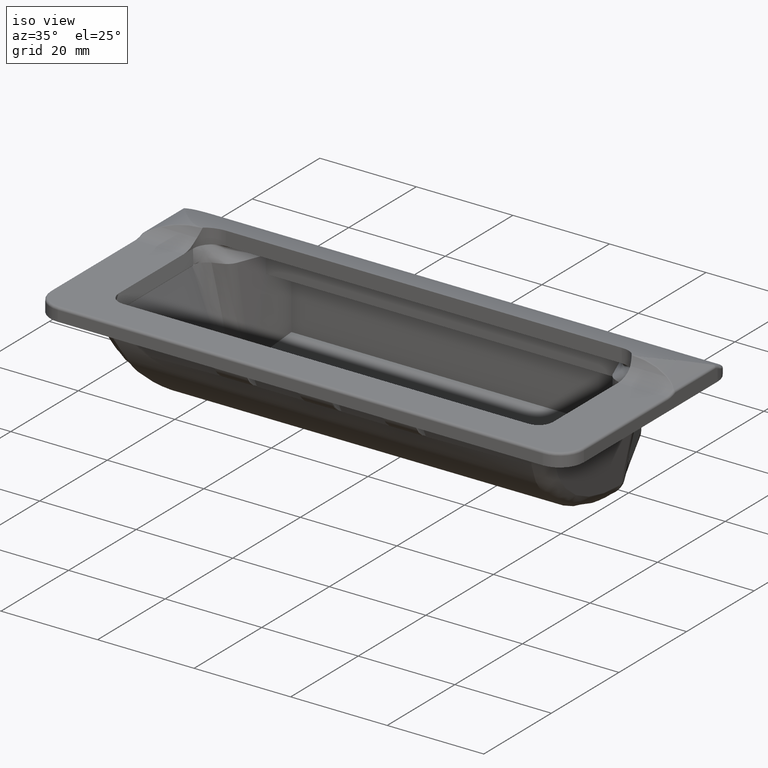
[diagram: clean part render]
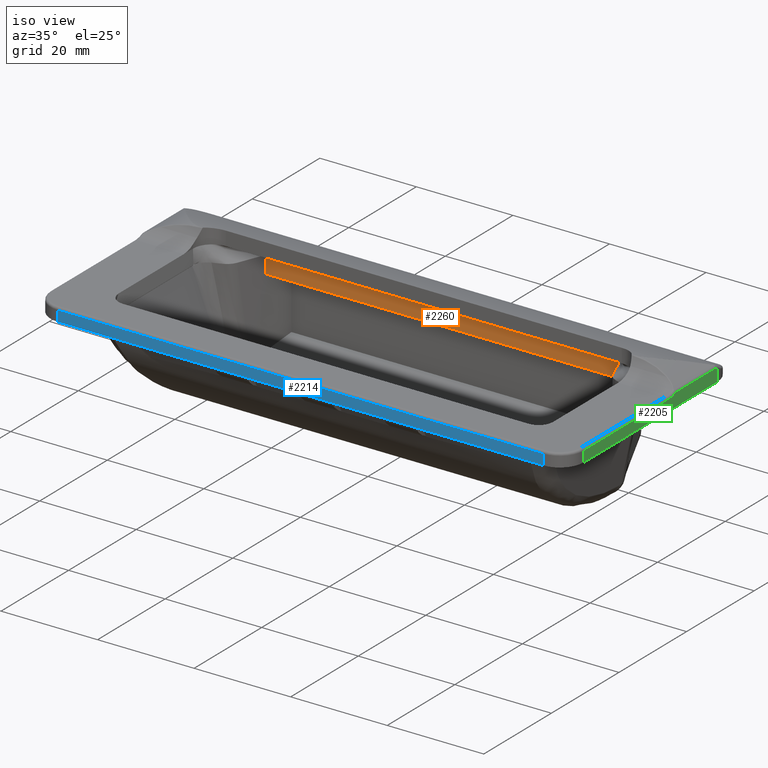
[diagram: same view with three faces highlighted in distinct colors, each labeled with its STEP entity id]
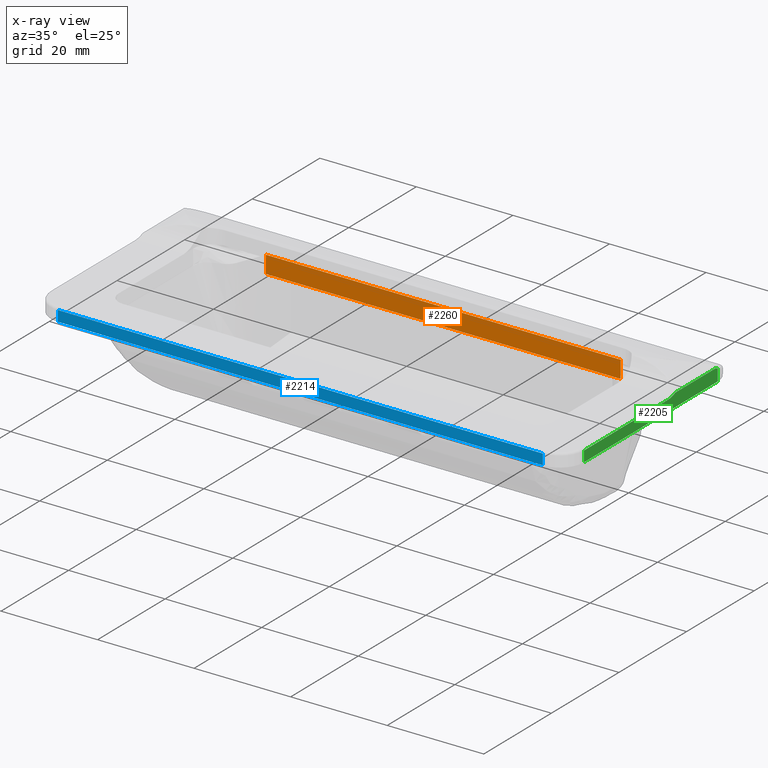
[diagram: x-ray of the same camera — body ghosted, the three highlighted faces saturated]
A machine part, iso view with three faces highlighted in distinct colors.
The next image is the same camera in x-ray (body ghosted, the three faces saturated) — at least one of them is partly hidden behind the body in this view.
Their STEP definitions:

[orange] entity #2260 — the highlighted planar face has unit normal (0, 1, 0).
#76=PLANE('',#2465);
#165=LINE('',#4479,#263);
#176=LINE('',#5185,#274);
#263=VECTOR('',#2869,73.537453362985);
#274=VECTOR('',#2948,73.4697963429796);
#441=FACE_OUTER_BOUND('',#588,.T.);
#588=EDGE_LOOP('',(#2000,#2001,#2002,#2003));
#820=B_SPLINE_CURVE_WITH_KNOTS('',3,(#5176,#5177,#5178,#5179),
 .UNSPECIFIED.,.F.,.F.,(4,4),(1.72669979155614,2.08615056253353),
 .UNSPECIFIED.);
#821=B_SPLINE_CURVE_WITH_KNOTS('',3,(#5181,#5182,#5183,#5184),
 .UNSPECIFIED.,.F.,.F.,(4,4),(0.00201949766755126,0.361073266217611),
 .UNSPECIFIED.);
#998=VERTEX_POINT('',#4469);
#999=VERTEX_POINT('',#4478);
#1033=VERTEX_POINT('',#5175);
#1034=VERTEX_POINT('',#5180);
#1294=EDGE_CURVE('',#998,#999,#165,.T.);
#1362=EDGE_CURVE('',#1033,#999,#820,.T.);
#1363=EDGE_CURVE('',#998,#1034,#821,.T.);
#1364=EDGE_CURVE('',#1033,#1034,#176,.T.);
#2000=ORIENTED_EDGE('',*,*,#1362,.T.);
#2001=ORIENTED_EDGE('',*,*,#1294,.F.);
#2002=ORIENTED_EDGE('',*,*,#1363,.T.);
#2003=ORIENTED_EDGE('',*,*,#1364,.F.);
#2260=ADVANCED_FACE('',(#441),#76,.F.);
#2465=AXIS2_PLACEMENT_3D('',#5174,#2946,#2947);
#2869=DIRECTION('',(1.,0.,0.));
#2946=DIRECTION('center_axis',(0.,1.,0.));
#2947=DIRECTION('ref_axis',(0.,0.,1.));
#2948=DIRECTION('',(-1.,0.,0.));
#4469=CARTESIAN_POINT('',(-36.7687266814925,42.2999999999996,1.30104260698261E-17));
#4478=CARTESIAN_POINT('',(36.7687266814925,42.2999999999996,-7.51713506256616E-17));
#4479=CARTESIAN_POINT('',(-8.73557754777392E-16,42.2999999999996,0.));
#5174=CARTESIAN_POINT('Origin',(0.,42.2999999999996,-1.2));
#5175=CARTESIAN_POINT('',(36.7348981714898,42.3000000000185,-3.59999999999995));
#5176=CARTESIAN_POINT('Ctrl Pts',(36.7348981714929,42.2999999999996,-3.59999999999998));
#5177=CARTESIAN_POINT('Ctrl Pts',(36.746624908528,42.2999999999996,-2.39762715734015));
#5178=CARTESIAN_POINT('Ctrl Pts',(36.7578922300366,42.2999999999996,-1.19669529433916));
#5179=CARTESIAN_POINT('Ctrl Pts',(36.7687266814925,42.2999999999996,-5.55111512312578E-16));
#5180=CARTESIAN_POINT('',(-36.7348981714898,42.3000000000185,-3.59999999999995));
#5181=CARTESIAN_POINT('Ctrl Pts',(-36.76872668329,42.3000000009474,-6.15934408511321E-11));
#5182=CARTESIAN_POINT('Ctrl Pts',(-36.7578908834876,42.3000000251109,-1.19684316956975));
#5183=CARTESIAN_POINT('Ctrl Pts',(-36.7466245835516,42.2999931294992,-2.39777047890555));
#5184=CARTESIAN_POINT('Ctrl Pts',(-36.7349006676514,42.2999849182948,-3.60000106962246));
#5185=CARTESIAN_POINT('',(0.,42.2999999999996,-3.6));

[blue] entity #2214 — the highlighted planar face has unit normal (0, -1, 0).
#60=PLANE('',#2419);
#137=LINE('',#4236,#235);
#139=LINE('',#4248,#237);
#140=LINE('',#4252,#238);
#141=LINE('',#4253,#239);
#235=VECTOR('',#2797,100.5);
#237=VECTOR('',#2815,2.2);
#238=VECTOR('',#2820,2.2);
#239=VECTOR('',#2821,100.5);
#395=FACE_OUTER_BOUND('',#538,.T.);
#538=EDGE_LOOP('',(#1739,#1740,#1741,#1742));
#964=VERTEX_POINT('',#4226);
#966=VERTEX_POINT('',#4232);
#969=VERTEX_POINT('',#4247);
#970=VERTEX_POINT('',#4251);
#1246=EDGE_CURVE('',#964,#966,#137,.T.);
#1252=EDGE_CURVE('',#966,#969,#139,.T.);
#1254=EDGE_CURVE('',#970,#964,#140,.T.);
#1255=EDGE_CURVE('',#969,#970,#141,.T.);
#1739=ORIENTED_EDGE('',*,*,#1246,.F.);
#1740=ORIENTED_EDGE('',*,*,#1254,.F.);
#1741=ORIENTED_EDGE('',*,*,#1255,.F.);
#1742=ORIENTED_EDGE('',*,*,#1252,.F.);
#2214=ADVANCED_FACE('',(#395),#60,.T.);
#2419=AXIS2_PLACEMENT_3D('',#4250,#2818,#2819);
#2797=DIRECTION('',(1.,0.,0.));
#2815=DIRECTION('',(0.,0.,-1.));
#2818=DIRECTION('center_axis',(0.,-1.,0.));
#2819=DIRECTION('ref_axis',(0.,0.,-1.));
#2820=DIRECTION('',(0.,0.,1.));
#2821=DIRECTION('',(-1.,0.,0.));
#4226=CARTESIAN_POINT('',(-50.25,0.,2.2));
#4232=CARTESIAN_POINT('',(50.25,0.,2.2));
#4236=CARTESIAN_POINT('',(0.,0.,2.2));
#4247=CARTESIAN_POINT('',(50.25,0.,0.));
#4248=CARTESIAN_POINT('',(50.25,0.,2.19759932337464));
#4250=CARTESIAN_POINT('Origin',(0.,0.,2.7));
#4251=CARTESIAN_POINT('',(-50.25,0.,0.));
#4252=CARTESIAN_POINT('',(-50.25,0.,2.19759932337464));
#4253=CARTESIAN_POINT('',(0.,0.,0.));

[green] entity #2205 — the highlighted planar face has unit normal (1, 0, 0).
#59=PLANE('',#2397);
#116=LINE('',#3809,#214);
#131=LINE('',#4207,#229);
#132=LINE('',#4213,#230);
#133=LINE('',#4215,#231);
#134=LINE('',#4216,#232);
#214=VECTOR('',#2700,11.8703838552117);
#229=VECTOR('',#2763,2.4902766105661);
#230=VECTOR('',#2770,24.7826237921249);
#231=VECTOR('',#2771,2.2);
#232=VECTOR('',#2772,39.5);
#386=FACE_OUTER_BOUND('',#529,.T.);
#529=EDGE_LOOP('',(#1698,#1699,#1700,#1701,#1702,#1703,#1704));
#655=CIRCLE('',#2369,44.1500000000001);
#671=CIRCLE('',#2398,5.5);
#900=VERTEX_POINT('',#3458);
#929=VERTEX_POINT('',#3791);
#930=VERTEX_POINT('',#3805);
#958=VERTEX_POINT('',#4206);
#959=VERTEX_POINT('',#4210);
#960=VERTEX_POINT('',#4212);
#961=VERTEX_POINT('',#4214);
#1182=EDGE_CURVE('',#929,#930,#655,.T.);
#1184=EDGE_CURVE('',#900,#929,#116,.T.);
#1231=EDGE_CURVE('',#930,#958,#131,.T.);
#1233=EDGE_CURVE('',#959,#900,#671,.T.);
#1234=EDGE_CURVE('',#960,#959,#132,.T.);
#1235=EDGE_CURVE('',#961,#960,#133,.T.);
#1236=EDGE_CURVE('',#961,#958,#134,.T.);
#1698=ORIENTED_EDGE('',*,*,#1182,.F.);
#1699=ORIENTED_EDGE('',*,*,#1184,.F.);
#1700=ORIENTED_EDGE('',*,*,#1233,.F.);
#1701=ORIENTED_EDGE('',*,*,#1234,.F.);
#1702=ORIENTED_EDGE('',*,*,#1235,.F.);
#1703=ORIENTED_EDGE('',*,*,#1236,.T.);
#1704=ORIENTED_EDGE('',*,*,#1231,.F.);
#2205=ADVANCED_FACE('',(#386),#59,.T.);
#2369=AXIS2_PLACEMENT_3D('',#3806,#2694,#2695);
#2397=AXIS2_PLACEMENT_3D('',#4209,#2766,#2767);
#2398=AXIS2_PLACEMENT_3D('',#4211,#2768,#2769);
#2694=DIRECTION('center_axis',(-1.,0.,0.));
#2695=DIRECTION('ref_axis',(0.,-0.398640996602438,-0.917107057996947));
#2700=DIRECTION('',(0.,1.,0.));
#2763=DIRECTION('',(0.,-1.74854199891828E-14,-1.));
#2766=DIRECTION('center_axis',(1.,0.,0.));
#2767=DIRECTION('ref_axis',(0.,0.,-1.));
#2768=DIRECTION('center_axis',(1.,0.,0.));
#2769=DIRECTION('ref_axis',(0.,0.173205080756889,-0.98488578017961));
#2770=DIRECTION('',(0.,1.,7.15628161707311E-17));
#2771=DIRECTION('',(0.,0.,1.));
#2772=DIRECTION('',(0.,1.,0.));
#3458=CARTESIAN_POINT('',(55.25,32.1049216164109,2.71432724546461));
#3791=CARTESIAN_POINT('',(55.25,43.9753054716227,2.71432724546461));
#3805=CARTESIAN_POINT('',(55.25,44.4999999999977,2.4902766105661));
#3806=CARTESIAN_POINT('Origin',(55.25,26.9,-38.));
#3809=CARTESIAN_POINT('',(55.25,34.549229213118,2.71432724546461));
#4206=CARTESIAN_POINT('',(55.25,44.5,0.));
#4207=CARTESIAN_POINT('',(55.25,44.5,0.847599323374639));
#4209=CARTESIAN_POINT('Origin',(55.25,39.6202385952446,1.69519864674928));
#4210=CARTESIAN_POINT('',(55.25,29.7826237921249,2.2));
#4211=CARTESIAN_POINT('Origin',(55.25,29.7826237921249,7.7));
#4212=CARTESIAN_POINT('',(55.25,5.,2.2));
#4213=CARTESIAN_POINT('',(55.25,35.3240842871559,2.2));
#4214=CARTESIAN_POINT('',(55.25,5.,0.));
#4215=CARTESIAN_POINT('',(55.25,5.,2.19759932337464));
#4216=CARTESIAN_POINT('',(55.25,0.,0.));